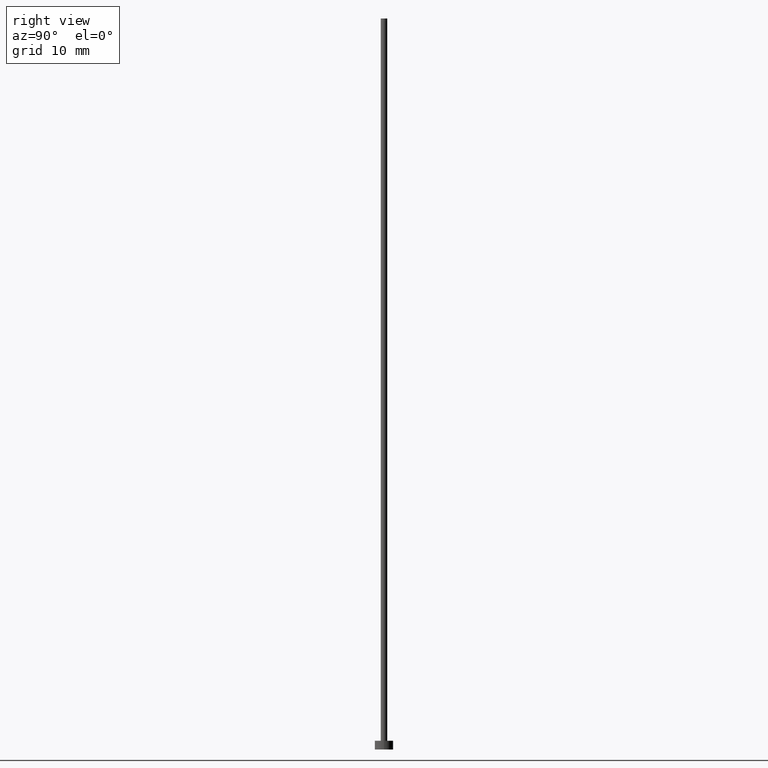
[diagram: clean part render]
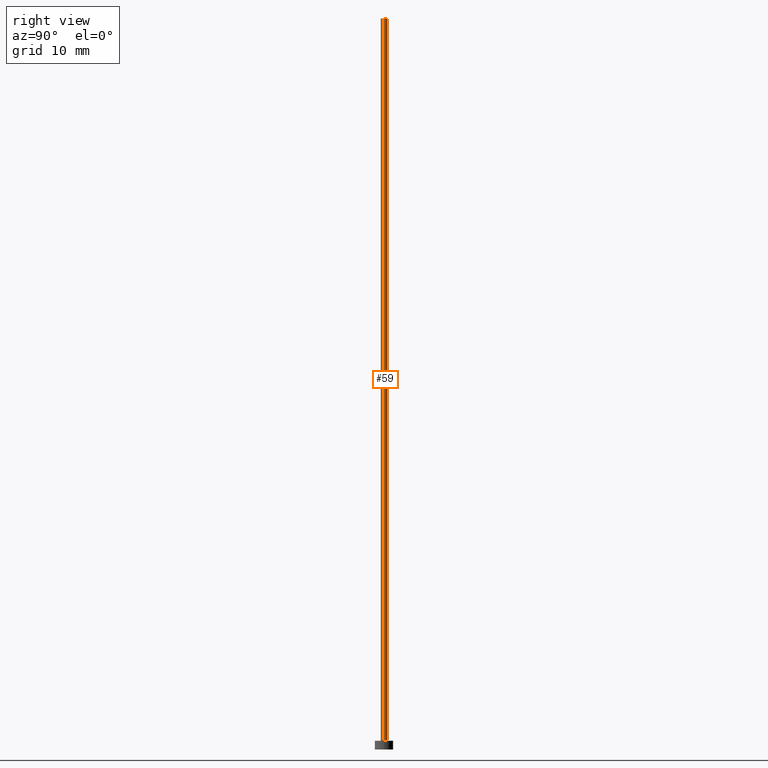
[diagram: same view with one face highlighted and labeled with its STEP entity id]
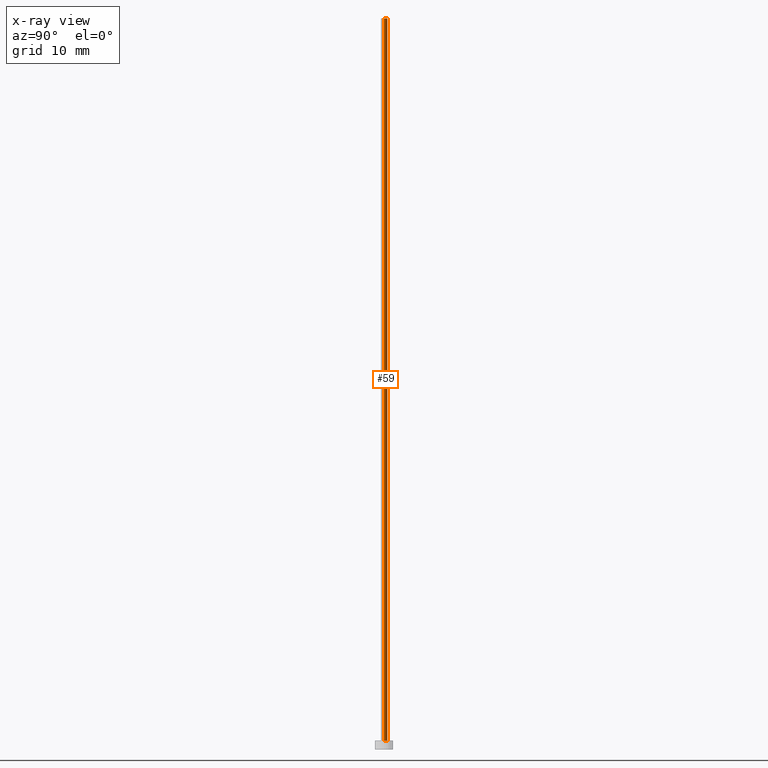
[diagram: x-ray of the same camera — body ghosted, the highlighted face saturated]
A machine part, right view. The second image highlights one B-rep face of the part: STEP entity #59.
The next image is the same camera in x-ray: the body ghosted, the highlighted face saturated — about 0% of this face is hidden behind the body in this view.
In plain terms, the highlighted cylindrical surface (edge-blend (fillet) strip) has radius 0.45 mm, axis along (-0, -0, -1).
Its self-contained STEP definition (entity closure, byte-faithful):
#6 = EDGE_LOOP ( 'NONE', ( #238, #28, #142, #70 ) ) ;
#7 = CIRCLE ( 'NONE', #18, 0.4500000000000000111 ) ;
#18 = AXIS2_PLACEMENT_3D ( 'NONE', #213, #41, #25 ) ;
#25 = DIRECTION ( 'NONE',  ( 1.000000000000000000, 0.000000000000000000, 0.000000000000000000 ) ) ;
#28 = ORIENTED_EDGE ( 'NONE', *, *, #101, .T. ) ;
#31 = FACE_OUTER_BOUND ( 'NONE', #6, .T. ) ;
#41 = DIRECTION ( 'NONE',  ( 0.000000000000000000, 0.000000000000000000, 1.000000000000000000 ) ) ;
#43 = LINE ( 'NONE', #115, #132 ) ;
#47 = VERTEX_POINT ( 'NONE', #170 ) ;
#55 = VERTEX_POINT ( 'NONE', #246 ) ;
#59 = ADVANCED_FACE ( 'NONE', ( #31 ), #95, .T. ) ;
#60 = CARTESIAN_POINT ( 'NONE',  ( -0.4500000000000000111, 0.000000000000000000, 100.0000000000000000 ) ) ;
#70 = ORIENTED_EDGE ( 'NONE', *, *, #127, .F. ) ;
#75 = DIRECTION ( 'NONE',  ( -0.000000000000000000, -0.000000000000000000, -1.000000000000000000 ) ) ;
#91 = VERTEX_POINT ( 'NONE', #185 ) ;
#95 = CYLINDRICAL_SURFACE ( 'NONE', #245, 0.4500000000000000111 ) ;
#101 = EDGE_CURVE ( 'NONE', #55, #91, #187, .T. ) ;
#107 = CARTESIAN_POINT ( 'NONE',  ( 0.000000000000000000, 0.000000000000000000, 100.0000000000000000 ) ) ;
#114 = DIRECTION ( 'NONE',  ( 0.000000000000000000, 0.000000000000000000, 1.000000000000000000 ) ) ;
#115 = CARTESIAN_POINT ( 'NONE',  ( -0.4500000000000000111, 0.000000000000000000, 100.0000000000000000 ) ) ;
#127 = EDGE_CURVE ( 'NONE', #201, #47, #43, .T. ) ;
#128 = DIRECTION ( 'NONE',  ( -1.000000000000000000, 0.000000000000000000, 0.000000000000000000 ) ) ;
#131 = DIRECTION ( 'NONE',  ( 1.000000000000000000, 0.000000000000000000, 0.000000000000000000 ) ) ;
#132 = VECTOR ( 'NONE', #234, 1000.000000000000000 ) ;
#142 = ORIENTED_EDGE ( 'NONE', *, *, #173, .T. ) ;
#168 = CIRCLE ( 'NONE', #189, 0.4500000000000000111 ) ;
#170 = CARTESIAN_POINT ( 'NONE',  ( -0.4500000000000000111, 0.000000000000000000, 1.199999999999999956 ) ) ;
#171 = CARTESIAN_POINT ( 'NONE',  ( 0.4500000000000000111, 5.510910596163088939E-17, 100.0000000000000000 ) ) ;
#173 = EDGE_CURVE ( 'NONE', #91, #47, #168, .T. ) ;
#177 = VECTOR ( 'NONE', #249, 1000.000000000000000 ) ;
#185 = CARTESIAN_POINT ( 'NONE',  ( 0.4500000000000000111, 5.510910596163088939E-17, 1.199999999999999956 ) ) ;
#187 = LINE ( 'NONE', #171, #177 ) ;
#189 = AXIS2_PLACEMENT_3D ( 'NONE', #191, #114, #131 ) ;
#191 = CARTESIAN_POINT ( 'NONE',  ( 0.000000000000000000, 0.000000000000000000, 1.199999999999999956 ) ) ;
#201 = VERTEX_POINT ( 'NONE', #60 ) ;
#213 = CARTESIAN_POINT ( 'NONE',  ( 0.000000000000000000, 0.000000000000000000, 100.0000000000000000 ) ) ;
#234 = DIRECTION ( 'NONE',  ( -0.000000000000000000, -0.000000000000000000, -1.000000000000000000 ) ) ;
#238 = ORIENTED_EDGE ( 'NONE', *, *, #250, .F. ) ;
#245 = AXIS2_PLACEMENT_3D ( 'NONE', #107, #75, #128 ) ;
#246 = CARTESIAN_POINT ( 'NONE',  ( 0.4500000000000000111, 5.510910596163088939E-17, 100.0000000000000000 ) ) ;
#249 = DIRECTION ( 'NONE',  ( -0.000000000000000000, -0.000000000000000000, -1.000000000000000000 ) ) ;
#250 = EDGE_CURVE ( 'NONE', #55, #201, #7, .T. ) ;